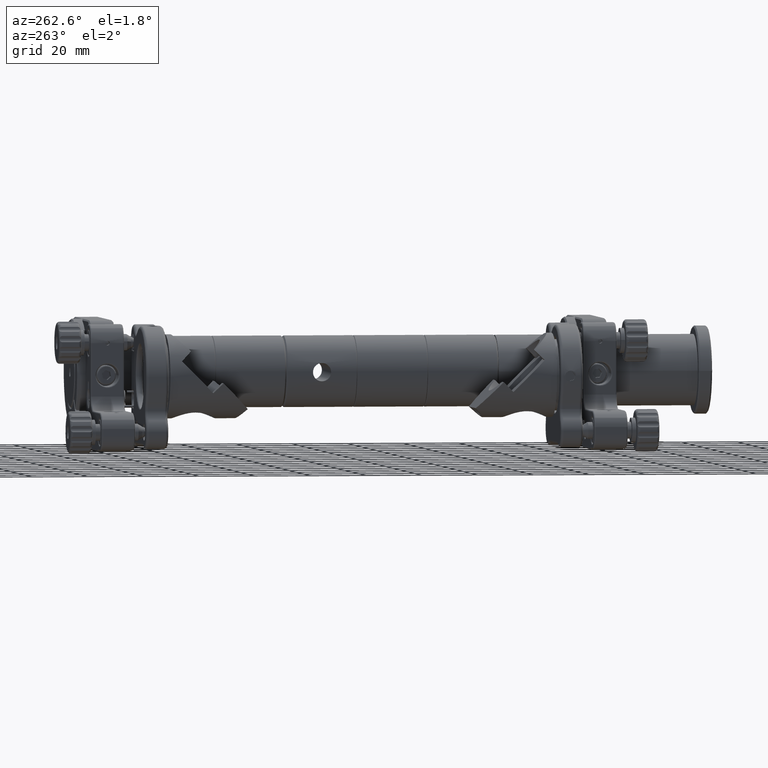
[diagram: clean part render]
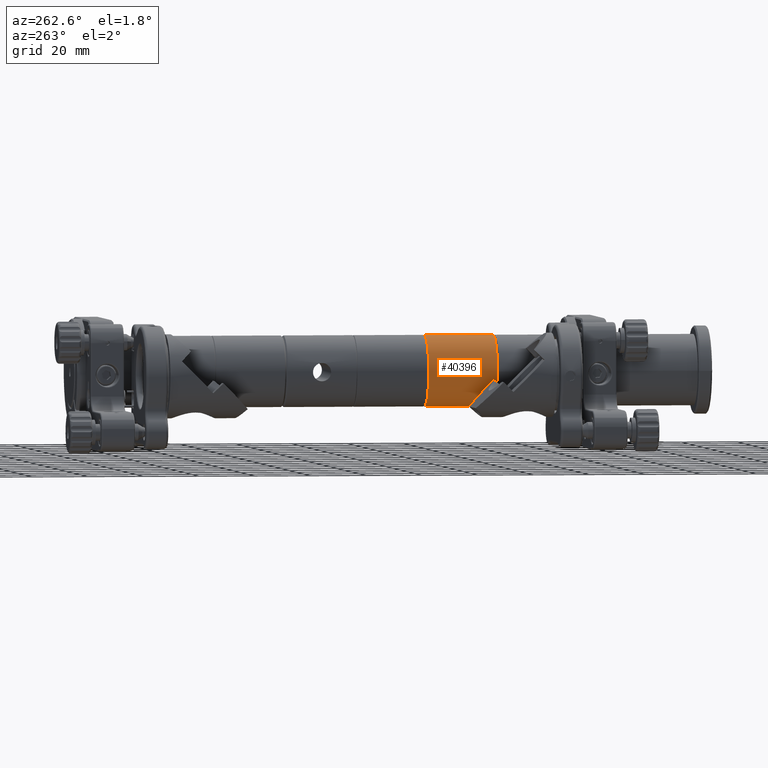
[diagram: same view with one face highlighted and labeled with its STEP entity id]
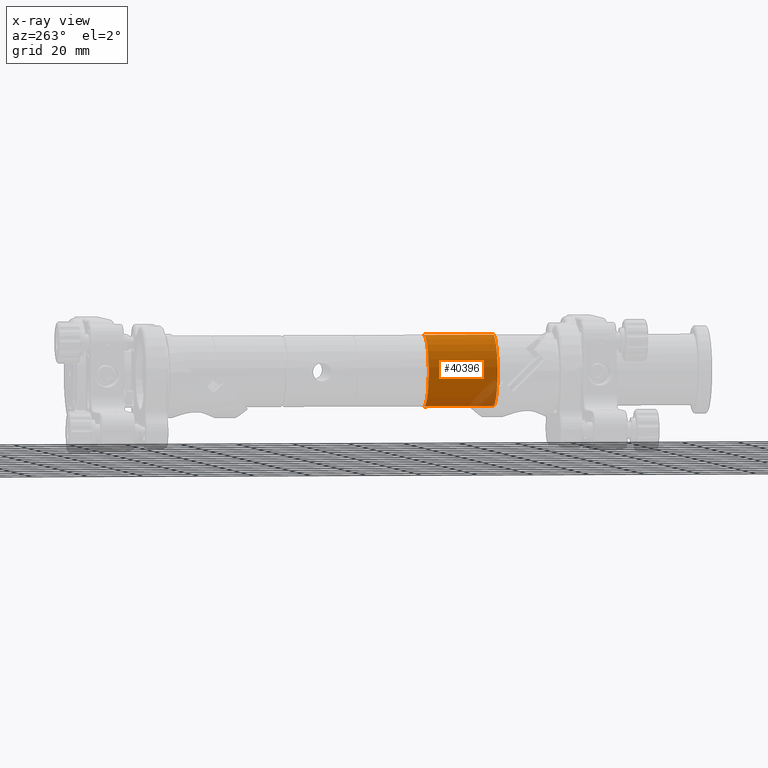
[diagram: x-ray of the same camera — body ghosted, the highlighted face saturated]
A machine part, auxiliary view. The second image highlights one B-rep face of the part: STEP entity #40396.
The next image is the same camera in x-ray: the body ghosted, the highlighted face saturated — about 8% of this face is hidden behind the body in this view.
In plain terms, the highlighted cylindrical surface (edge-blend (fillet) strip) has radius 12.75 mm, axis along (-0, -1, -0).
Its self-contained STEP definition (entity closure, byte-faithful):
#1003 = CARTESIAN_POINT ( 'NONE',  ( 0.0000000000000000000, -106.7147025247541000, -12.75000000000000200 ) ) ;
#1717 = ORIENTED_EDGE ( 'NONE', *, *, #10412, .T. ) ;
#2821 = EDGE_LOOP ( 'NONE', ( #22242, #37258, #1717, #15734 ) ) ;
#2906 = DIRECTION ( 'NONE',  ( -0.0000000000000000000, -1.000000000000000000, -0.0000000000000000000 ) ) ;
#3693 = DIRECTION ( 'NONE',  ( 0.0000000000000000000, 0.0000000000000000000, -1.000000000000000000 ) ) ;
#6915 = CIRCLE ( 'NONE', #11519, 12.75000000000000000 ) ;
#7132 = EDGE_CURVE ( 'NONE', #26956, #29076, #19878, .T. ) ;
#8994 = VERTEX_POINT ( 'NONE', #10042 ) ;
#9679 = EDGE_CURVE ( 'NONE', #29076, #8994, #46248, .T. ) ;
#9787 = DIRECTION ( 'NONE',  ( -0.0000000000000000000, -1.000000000000000000, -0.0000000000000000000 ) ) ;
#9990 = DIRECTION ( 'NONE',  ( 0.0000000000000000000, 0.0000000000000000000, -1.000000000000000000 ) ) ;
#10042 = CARTESIAN_POINT ( 'NONE',  ( 0.0000000000000000000, -131.4147025247540900, 12.75000000000000000 ) ) ;
#10202 = FACE_OUTER_BOUND ( 'NONE', #2821, .T. ) ;
#10412 = EDGE_CURVE ( 'NONE', #26956, #55206, #19653, .T. ) ;
#11519 = AXIS2_PLACEMENT_3D ( 'NONE', #26562, #2906, #3693 ) ;
#13423 = DIRECTION ( 'NONE',  ( 0.0000000000000000000, 0.0000000000000000000, 1.000000000000000000 ) ) ;
#15340 = VECTOR ( 'NONE', #49451, 1000.000000000000000 ) ;
#15734 = ORIENTED_EDGE ( 'NONE', *, *, #44458, .F. ) ;
#17431 = CYLINDRICAL_SURFACE ( 'NONE', #20262, 12.74999999999999800 ) ;
#19653 = LINE ( 'NONE', #54473, #15340 ) ;
#19878 = CIRCLE ( 'NONE', #47132, 12.75000000000000200 ) ;
#20262 = AXIS2_PLACEMENT_3D ( 'NONE', #55164, #9787, #9990 ) ;
#20408 = VECTOR ( 'NONE', #48418, 1000.000000000000000 ) ;
#22069 = CARTESIAN_POINT ( 'NONE',  ( 0.0000000000000000000, -106.7147025247541000, 0.0000000000000000000 ) ) ;
#22242 = ORIENTED_EDGE ( 'NONE', *, *, #9679, .F. ) ;
#26562 = CARTESIAN_POINT ( 'NONE',  ( 0.0000000000000000000, -131.4147025247540900, 0.0000000000000000000 ) ) ;
#26956 = VERTEX_POINT ( 'NONE', #1003 ) ;
#27959 = CARTESIAN_POINT ( 'NONE',  ( 1.561424668912875100E-015, -131.4147025247540900, -12.75000000000000000 ) ) ;
#29076 = VERTEX_POINT ( 'NONE', #36344 ) ;
#36344 = CARTESIAN_POINT ( 'NONE',  ( 1.561424668912875500E-015, -106.7147025247541000, 12.75000000000000200 ) ) ;
#37258 = ORIENTED_EDGE ( 'NONE', *, *, #7132, .F. ) ;
#39204 = CARTESIAN_POINT ( 'NONE',  ( 1.561424668912874900E-015, -139.9628937392243700, 12.74999999999999800 ) ) ;
#40396 = ADVANCED_FACE ( 'NONE', ( #10202 ), #17431, .T. ) ;
#44458 = EDGE_CURVE ( 'NONE', #8994, #55206, #6915, .T. ) ;
#46248 = LINE ( 'NONE', #39204, #20408 ) ;
#47132 = AXIS2_PLACEMENT_3D ( 'NONE', #22069, #58585, #13423 ) ;
#48418 = DIRECTION ( 'NONE',  ( -0.0000000000000000000, -1.000000000000000000, -0.0000000000000000000 ) ) ;
#49451 = DIRECTION ( 'NONE',  ( -0.0000000000000000000, -1.000000000000000000, -0.0000000000000000000 ) ) ;
#54473 = CARTESIAN_POINT ( 'NONE',  ( 0.0000000000000000000, -139.9628937392243700, -12.74999999999999800 ) ) ;
#55164 = CARTESIAN_POINT ( 'NONE',  ( 0.0000000000000000000, -139.9628937392243700, 0.0000000000000000000 ) ) ;
#55206 = VERTEX_POINT ( 'NONE', #27959 ) ;
#58585 = DIRECTION ( 'NONE',  ( -0.0000000000000000000, 1.000000000000000000, -0.0000000000000000000 ) ) ;